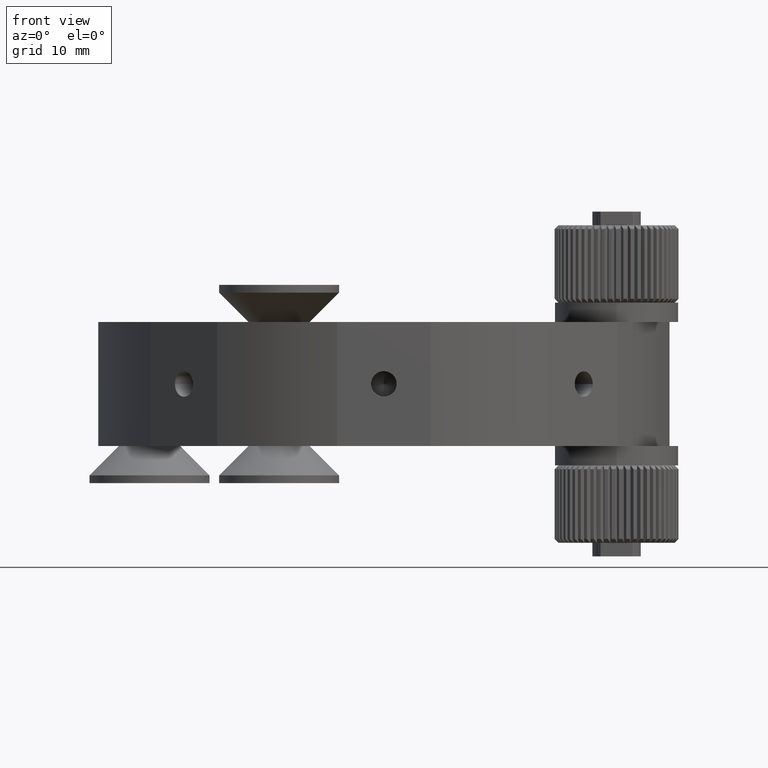
[diagram: clean part render]
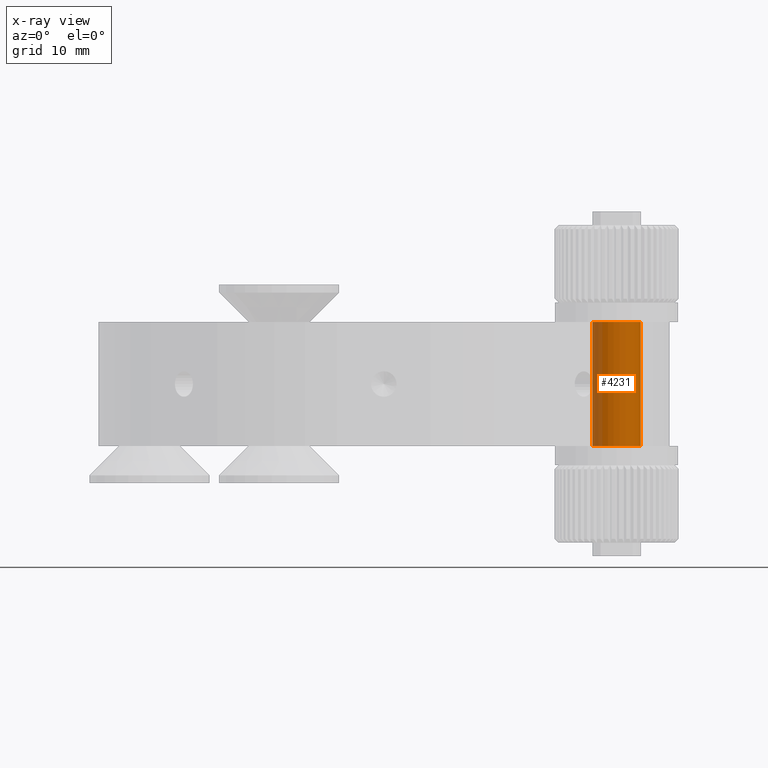
[diagram: x-ray — body ghosted, one internal face saturated and labeled with its STEP entity id]
A machine part, front view, then the same camera in x-ray: the body is ghosted and one INTERNAL B-rep face — a face not visible from any outside direction — is saturated and labeled: STEP entity #4231.
In plain terms, the highlighted cylindrical surface (edge-blend (fillet) strip) has radius 3.125 mm, axis along (-0, -0, -1).
Its self-contained STEP definition (entity closure, byte-faithful):
#434 = DIRECTION ( 'NONE',  ( 0.0000000000000000000, 0.0000000000000000000, 1.000000000000000000 ) ) ;
#591 = VERTEX_POINT ( 'NONE', #11221 ) ;
#1105 = CARTESIAN_POINT ( 'NONE',  ( 32.72957168722360400, -9.101940590081937900, -8.000000000000000000 ) ) ;
#1478 = VERTEX_POINT ( 'NONE', #16678 ) ;
#2234 = LINE ( 'NONE', #4985, #16359 ) ;
#2593 = VERTEX_POINT ( 'NONE', #7585 ) ;
#2613 = VERTEX_POINT ( 'NONE', #14469 ) ;
#3345 = CIRCLE ( 'NONE', #6627, 3.124999999999996000 ) ;
#3373 = ORIENTED_EDGE ( 'NONE', *, *, #8974, .T. ) ;
#4231 = ADVANCED_FACE ( 'NONE', ( #9605 ), #16998, .F. ) ;
#4985 = CARTESIAN_POINT ( 'NONE',  ( 29.60457168722360400, -9.101940590081937900, 8.000000000000000000 ) ) ;
#6430 = LINE ( 'NONE', #11296, #8570 ) ;
#6612 = EDGE_CURVE ( 'NONE', #1478, #2593, #11709, .T. ) ;
#6627 = AXIS2_PLACEMENT_3D ( 'NONE', #1105, #13683, #17731 ) ;
#7236 = EDGE_LOOP ( 'NONE', ( #10425, #3373, #11187, #11656 ) ) ;
#7585 = CARTESIAN_POINT ( 'NONE',  ( 35.85457168722359700, -9.101940590081937900, 8.000000000000000000 ) ) ;
#8570 = VECTOR ( 'NONE', #15608, 1000.000000000000000 ) ;
#8763 = DIRECTION ( 'NONE',  ( -0.0000000000000000000, -0.0000000000000000000, -1.000000000000000000 ) ) ;
#8974 = EDGE_CURVE ( 'NONE', #2593, #591, #6430, .T. ) ;
#9605 = FACE_OUTER_BOUND ( 'NONE', #7236, .T. ) ;
#10067 = DIRECTION ( 'NONE',  ( -1.000000000000000000, 0.0000000000000000000, 0.0000000000000000000 ) ) ;
#10425 = ORIENTED_EDGE ( 'NONE', *, *, #6612, .T. ) ;
#11187 = ORIENTED_EDGE ( 'NONE', *, *, #13401, .F. ) ;
#11221 = CARTESIAN_POINT ( 'NONE',  ( 35.85457168722359700, -9.101940590081937900, -8.000000000000000000 ) ) ;
#11296 = CARTESIAN_POINT ( 'NONE',  ( 35.85457168722359700, -9.101940590081937900, 8.000000000000000000 ) ) ;
#11399 = DIRECTION ( 'NONE',  ( 1.000000000000000000, 0.0000000000000000000, 0.0000000000000000000 ) ) ;
#11656 = ORIENTED_EDGE ( 'NONE', *, *, #14226, .F. ) ;
#11687 = AXIS2_PLACEMENT_3D ( 'NONE', #12844, #8763, #10067 ) ;
#11709 = CIRCLE ( 'NONE', #12325, 3.124999999999996000 ) ;
#12325 = AXIS2_PLACEMENT_3D ( 'NONE', #17045, #434, #11399 ) ;
#12844 = CARTESIAN_POINT ( 'NONE',  ( 32.72957168722360400, -9.101940590081937900, 8.000000000000000000 ) ) ;
#13260 = DIRECTION ( 'NONE',  ( -0.0000000000000000000, -0.0000000000000000000, -1.000000000000000000 ) ) ;
#13401 = EDGE_CURVE ( 'NONE', #2613, #591, #3345, .T. ) ;
#13683 = DIRECTION ( 'NONE',  ( 0.0000000000000000000, 0.0000000000000000000, 1.000000000000000000 ) ) ;
#14226 = EDGE_CURVE ( 'NONE', #1478, #2613, #2234, .T. ) ;
#14469 = CARTESIAN_POINT ( 'NONE',  ( 29.60457168722360400, -9.101940590081937900, -8.000000000000000000 ) ) ;
#15608 = DIRECTION ( 'NONE',  ( -0.0000000000000000000, -0.0000000000000000000, -1.000000000000000000 ) ) ;
#16359 = VECTOR ( 'NONE', #13260, 1000.000000000000000 ) ;
#16678 = CARTESIAN_POINT ( 'NONE',  ( 29.60457168722360400, -9.101940590081937900, 8.000000000000000000 ) ) ;
#16998 = CYLINDRICAL_SURFACE ( 'NONE', #11687, 3.124999999999999100 ) ;
#17045 = CARTESIAN_POINT ( 'NONE',  ( 32.72957168722360400, -9.101940590081937900, 8.000000000000000000 ) ) ;
#17731 = DIRECTION ( 'NONE',  ( 1.000000000000000000, 0.0000000000000000000, 0.0000000000000000000 ) ) ;